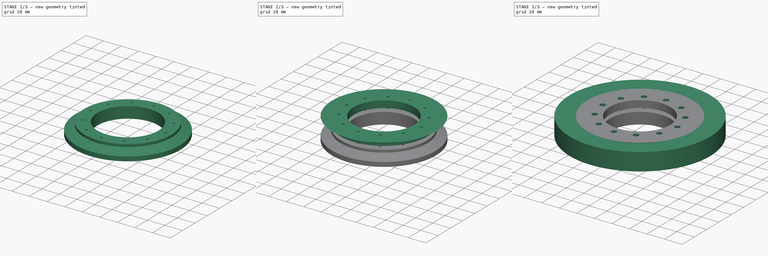
[diagram: build sequence overview — one tinted view per stage of 3, left to right]
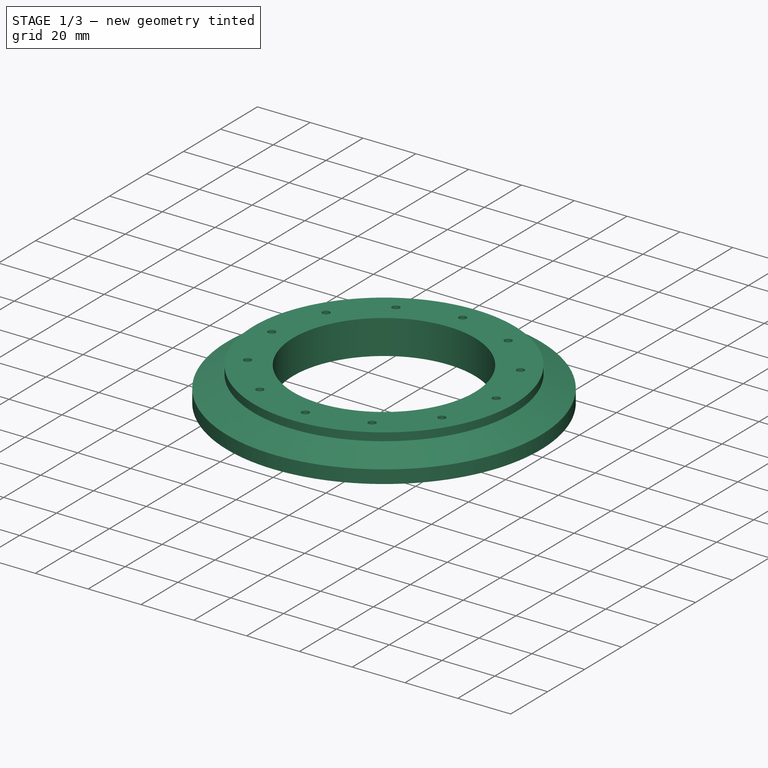
[diagram: stage 1 of 3 — iso view after this stage's code; geometry added in this stage tinted green]
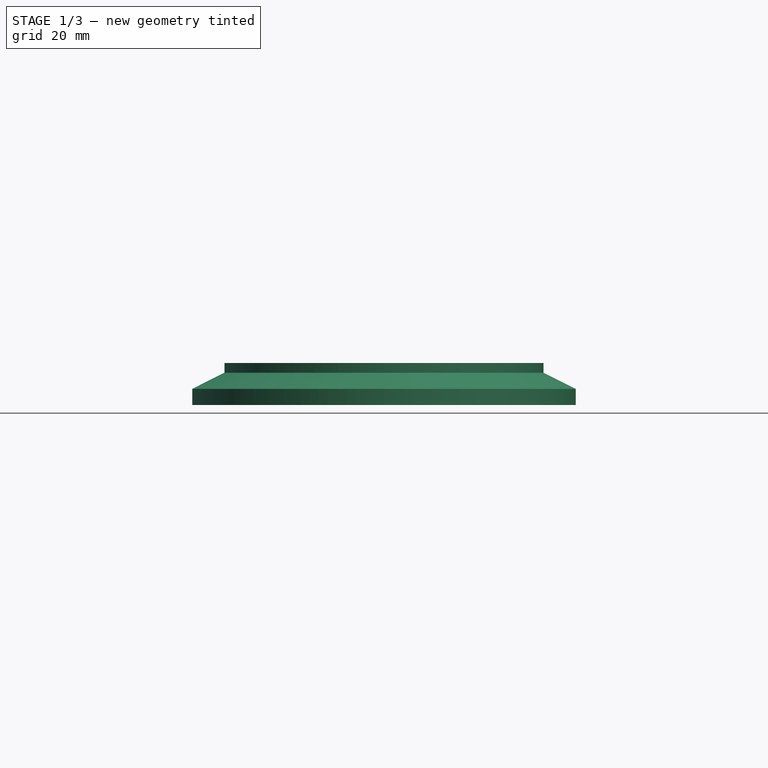
[diagram: stage 1 of 3 — front view after this stage's code; geometry added in this stage tinted green]
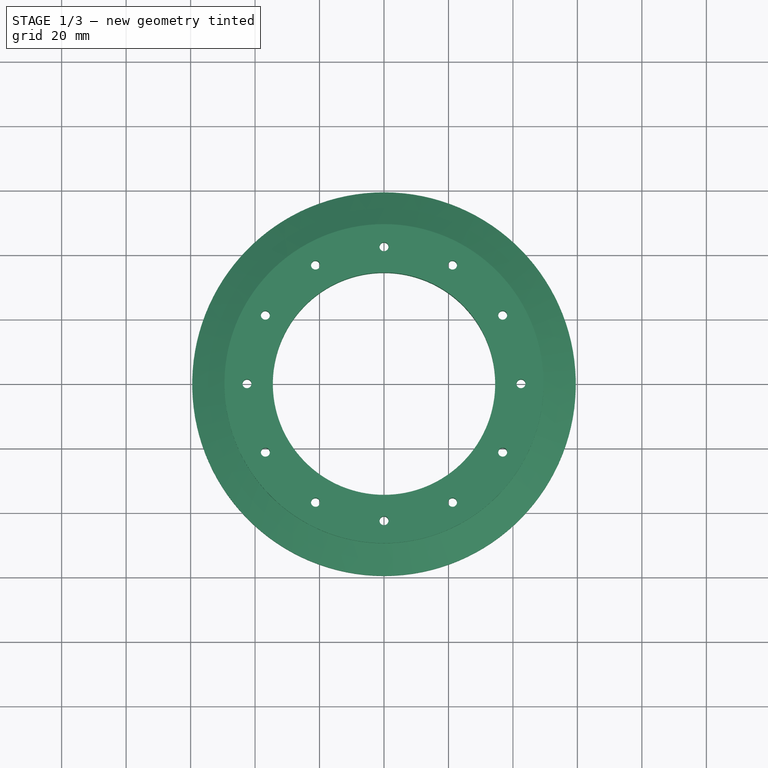
[diagram: stage 1 of 3 — top view after this stage's code; geometry added in this stage tinted green]
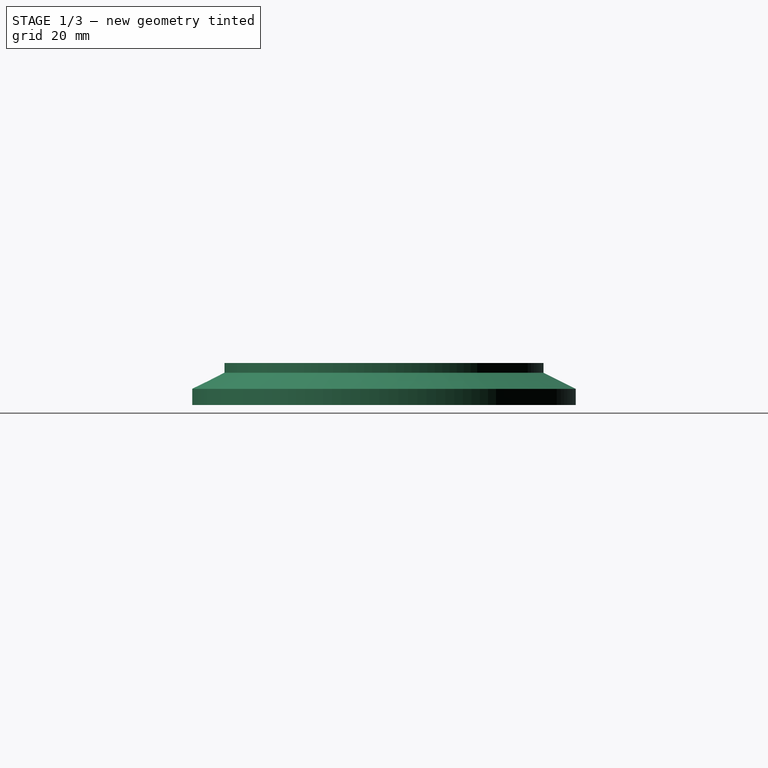
[diagram: stage 1 of 3 — right view after this stage's code; geometry added in this stage tinted green]
FCSTD DOCUMENT  (FreeCAD 1.0R39319 (Git))
Label: SlewingRingRev1
License: All rights reserved
LicenseURL: https://en.wikipedia.org/wiki/All_rights_reserved
objects: Sketcher::SketchObject×6, PartDesign::Revolution×3, PartDesign::Body×3, PartDesign::Pocket×3
note: 33 computed .brp shape members not serialized (recipe doc carries the construction recipe); baked Part::Feature solids carry a one-line shape summary decoded from their .brp

FEATURE [PartDesign::Body] Body001  label="InnerUpper"
  AllowCompound = false
  Group = -> [Sketch001,Revolution001,Sketch002,Pocket,Sketch003,Pocket001]
  Origin = -> Origin001
  Tip = -> Pocket001
FEATURE [Sketcher::SketchObject] Sketch004
  ArcFitTolerance = 1e-06
  AttachmentSupport = -> [YZ_Plane002]
  FullyConstrained = true
  MakeInternals = false
  MapMode = 5
  Placement = pos=(0,0,0) rot=(0.57735,0.57735,0.57735;2.0944rad)
  sketch-geometry (12):
    g0: LineSegment [constr] StartX=0 StartY=0 StartZ=0 EndX=49.5 EndY=0 EndZ=0
    g1: LineSegment [constr] StartX=49.5 StartY=0 StartZ=0 EndX=49.5 EndY=-2 EndZ=0
    g2: LineSegment StartX=49.5 StartY=-2 StartZ=0 EndX=49.5 EndY=-5 EndZ=0
    g3: LineSegment [constr] StartX=49.5 StartY=-5 StartZ=0 EndX=49.5 EndY=-10 EndZ=0
    g4: LineSegment [constr] StartX=49.5 StartY=-10 StartZ=0 EndX=59.5 EndY=-10 EndZ=0
    g5: LineSegment [constr] StartX=59.5 StartY=-10 StartZ=0 EndX=59.5 EndY=-5 EndZ=0
    g6: LineSegment [constr] StartX=59.5 StartY=-5 StartZ=0 EndX=49.5 EndY=-5 EndZ=0
    g7: LineSegment StartX=49.5 StartY=-5 StartZ=0 EndX=59.5 EndY=-10 EndZ=0
    g8: LineSegment StartX=59.5 StartY=-10 StartZ=0 EndX=59.5 EndY=-15 EndZ=0
    g9: LineSegment StartX=59.5 StartY=-15 StartZ=0 EndX=34.5 EndY=-15 EndZ=0
    g10: LineSegment StartX=34.5 StartY=-15 StartZ=0 EndX=34.5 EndY=-2 EndZ=0
    g11: LineSegment StartX=34.5 StartY=-2 StartZ=0 EndX=49.5 EndY=-2 EndZ=0
  constraints (33):
    c: Distance(g0) = 49.5
    c: Coincident(g0,g-1)
    c: PointOnObject(g0,g-1)
    c: Distance(g1) = 2
    c: Coincident(g1,g0)
    c: Vertical(g1)
    c: Distance(g2) = 3
    c: Coincident(g2,g1)
    c: Vertical(g2)
    c: Coincident(g3,g4)
    c: Coincident(g4,g5)
    c: Coincident(g5,g6)
    c: Coincident(g6,g3)
    c: Vertical(g3)
    c: Vertical(g5)
    c: Horizontal(g4)
    c: Horizontal(g6)
    c: Distance(g3,g5) = 10
    c: Distance(g4,g6) = 5
    c: Coincident(g3,g2)
    c: Coincident(g7,g2)
    c: Coincident(g7,g4)
    c: Distance(g8) = 5
    c: Coincident(g8,g4)
    c: Vertical(g8)
    c: Distance(g9) = 25
    c: Coincident(g9,g8)
    c: Horizontal(g9)
    c: Vertical(g10)
    c: Coincident(g10,g9)
    c: Coincident(g11,g1)
    c: Coincident(g11,g10)
    c: Perpendicular(g11,g10)
FEATURE [PartDesign::Revolution] Revolution002
  Angle = 360
  Angle2 = 60
  Axis = (0,0,1)
  Base = (0,0,0)
  Placement = pos=(0,0,0) rot=(1,1,1;2.0944rad)
  Profile = -> Sketch004
  ReferenceAxis = -> Sketch004 [V_Axis]
  Refine = true
  Suppressed = false
  Type = 0
FEATURE [Sketcher::SketchObject] Sketch005
  ArcFitTolerance = 1e-06
  AttachmentSupport = -> [Revolution002]
  FullyConstrained = true
  MakeInternals = false
  MapMode = 5
  Placement = pos=(3.3e-15,0,-15) rot=(0.707107,0.707107,0;3.14159rad)
  sketch-geometry (26):
    g0: Circle [constr] CenterX=0 CenterY=0 CenterZ=0 NormalX=0 NormalY=0 NormalZ=1 AngleXU=0 Radius=42.5
    g1: LineSegment [constr] StartX=-21.25 StartY=36.8061 StartZ=0 EndX=0 EndY=42.5 EndZ=0
    g2: LineSegment [constr] StartX=0 StartY=42.5 StartZ=0 EndX=21.25 EndY=36.8061 EndZ=0
    g3: LineSegment [constr] StartX=21.25 StartY=36.8061 StartZ=0 EndX=36.8061 EndY=21.25 EndZ=0
    g4: LineSegment [constr] StartX=36.8061 StartY=21.25 StartZ=0 EndX=42.5 EndY=0 EndZ=0
    g5: LineSegment [constr] StartX=42.5 StartY=0 StartZ=0 EndX=36.8061 EndY=-21.25 EndZ=0
    g6: LineSegment [constr] StartX=36.8061 StartY=-21.25 StartZ=0 EndX=21.25 EndY=-36.8061 EndZ=0
    g7: LineSegment [constr] StartX=21.25 StartY=-36.8061 StartZ=0 EndX=0 EndY=-42.5 EndZ=0
    g8: LineSegment [constr] StartX=0 StartY=-42.5 StartZ=0 EndX=-21.25 EndY=-36.8061 EndZ=0
    g9: LineSegment [constr] StartX=-21.25 StartY=-36.8061 StartZ=0 EndX=-36.8061 EndY=-21.25 EndZ=0
    g10: LineSegment [constr] StartX=-36.8061 StartY=-21.25 StartZ=0 EndX=-42.5 EndY=0 EndZ=0
    g11: LineSegment [constr] StartX=-42.5 StartY=0 StartZ=0 EndX=-36.8061 EndY=21.25 EndZ=0
    g12: LineSegment [constr] StartX=-36.8061 StartY=21.25 StartZ=0 EndX=-21.25 EndY=36.8061 EndZ=0
    g13: GeomPoint [constr] X=0 Y=42.5 Z=0
    g14: Circle CenterX=21.25 CenterY=36.8061 CenterZ=0 NormalX=0 NormalY=0 NormalZ=1 AngleXU=0 Radius=1.4
    g15: Circle CenterX=0 CenterY=42.5 CenterZ=0 NormalX=0 NormalY=0 NormalZ=1 AngleXU=0 Radius=1.4
    g16: Circle CenterX=-21.25 CenterY=36.8061 CenterZ=0 NormalX=0 NormalY=0 NormalZ=1 AngleXU=0 Radius=1.4
    g17: Circle CenterX=-36.8061 CenterY=21.25 CenterZ=0 NormalX=0 NormalY=0 NormalZ=1 AngleXU=0 Radius=1.4
    g18: Circle CenterX=-42.5 CenterY=0 CenterZ=0 NormalX=0 NormalY=0 NormalZ=1 AngleXU=0 Radius=1.4
    g19: Circle CenterX=-36.8061 CenterY=-21.25 CenterZ=0 NormalX=0 NormalY=0 NormalZ=1 AngleXU=0 Radius=1.4
    g20: Circle CenterX=-21.25 CenterY=-36.8061 CenterZ=0 NormalX=0 NormalY=0 NormalZ=1 AngleXU=0 Radius=1.4
    g21: Circle CenterX=0 CenterY=-42.5 CenterZ=0 NormalX=0 NormalY=0 NormalZ=1 AngleXU=0 Radius=1.4
    g22: Circle CenterX=21.25 CenterY=-36.8061 CenterZ=0 NormalX=0 NormalY=0 NormalZ=1 AngleXU=0 Radius=1.4
    g23: Circle CenterX=36.8061 CenterY=-21.25 CenterZ=0 NormalX=0 NormalY=0 NormalZ=1 AngleXU=0 Radius=1.4
    g24: Circle CenterX=42.5 CenterY=0 CenterZ=0 NormalX=0 NormalY=0 NormalZ=1 AngleXU=0 Radius=1.4
    g25: Circle CenterX=36.8061 CenterY=21.25 CenterZ=0 NormalX=0 NormalY=0 NormalZ=1 AngleXU=0 Radius=1.4
  constraints (63):
    c: Diameter(g0) = 85
    c: Coincident(g0,g-1)
    c: PointOnObject(g1,g0)
    c: PointOnObject(g1,g0)
    c: Coincident(g1,g2)
    c: PointOnObject(g2,g0)
    c: Coincident(g2,g3)
    c: PointOnObject(g3,g0)
    c: Coincident(g3,g4)
    c: PointOnObject(g4,g0)
    c: Coincident(g4,g5)
    c: PointOnObject(g5,g0)
    c: Coincident(g5,g6)
    c: PointOnObject(g6,g0)
    c: Coincident(g6,g7)
    c: PointOnObject(g7,g0)
    c: Coincident(g7,g8)
    c: PointOnObject(g8,g0)
    c: Coincident(g8,g9)
    c: PointOnObject(g9,g0)
    c: Coincident(g9,g10)
    c: PointOnObject(g10,g0)
    c: Coincident(g10,g11)
    c: PointOnObject(g11,g0)
    c: Coincident(g11,g12)
    c: Coincident(g12,g1)
    c: Equal(g1,g2)
    c: Equal(g2,g3)
    c: Equal(g3,g4)
    c: Equal(g5,g6)
    c: Equal(g6,g7)
    c: Equal(g7,g8)
    c: Equal(g8,g9)
    c: Equal(g9,g10)
    c: Equal(g10,g11)
    c: Equal(g11,g12)
    c: Coincident(g13,g1)
    c: PointOnObject(g1,g-2)
    c: Equal(g1,g12)
    c: Coincident(g14,g2)
    c: Coincident(g15,g1)
    c: Coincident(g16,g1)
    c: Coincident(g17,g11)
    c: Coincident(g18,g10)
    c: Coincident(g19,g9)
    c: Diameter(g20) = 2.8
    c: Coincident(g20,g8)
    c: Coincident(g21,g7)
    c: Coincident(g22,g6)
    c: Coincident(g23,g5)
    c: Coincident(g24,g4)
    c: Coincident(g25,g3)
    c: Equal(g20,g19)
    c: Equal(g19,g18)
    c: Equal(g18,g17)
    c: Equal(g17,g16)
    c: Equal(g16,g15)
    c: Equal(g15,g14)
    c: Equal(g14,g25)
    c: Equal(g25,g24)
    c: Equal(g24,g23)
    c: Equal(g23,g22)
    c: Equal(g22,g21)
FEATURE [PartDesign::Pocket] Pocket002
  BaseFeature = -> Revolution002
  Direction = (0,0,1)
  Length = 5
  Length2 = 5
  Placement = pos=(0,0,0) rot=(1,1,1;2.0944rad)
  Profile = -> Sketch005
  ReferenceAxis = -> Sketch005 [N_Axis]
  Refine = true
  Suppressed = false
  Type = 1
FEATURE [PartDesign::Body] Body002  label="InnerLower"
  AllowCompound = false
  Group = -> [Sketch004,Revolution002,Sketch005,Pocket002]
  Origin = -> Origin002
  Tip = -> Pocket002
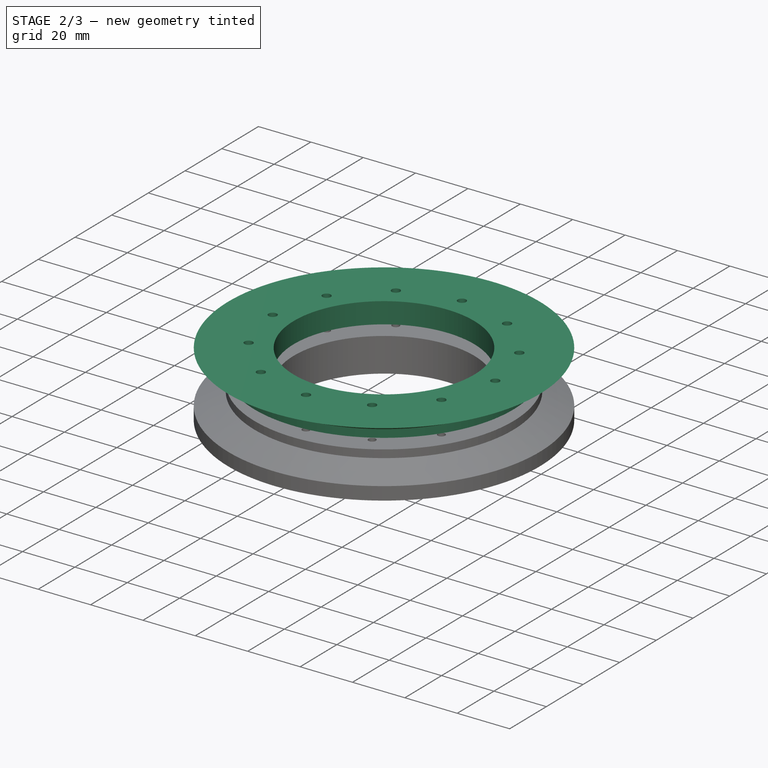
[diagram: stage 2 of 3 — iso view after this stage's code; geometry added in this stage tinted green]
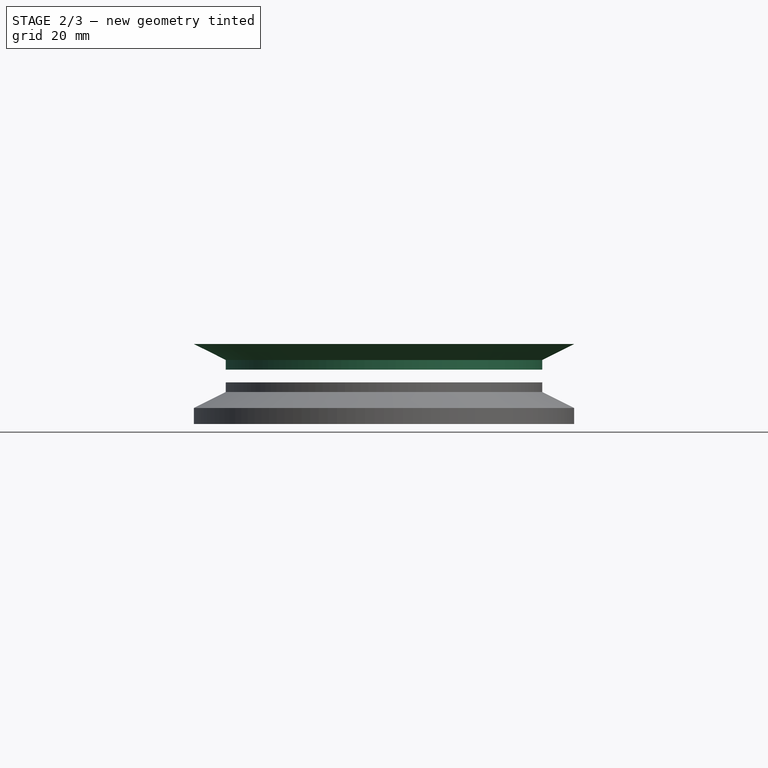
[diagram: stage 2 of 3 — front view after this stage's code; geometry added in this stage tinted green]
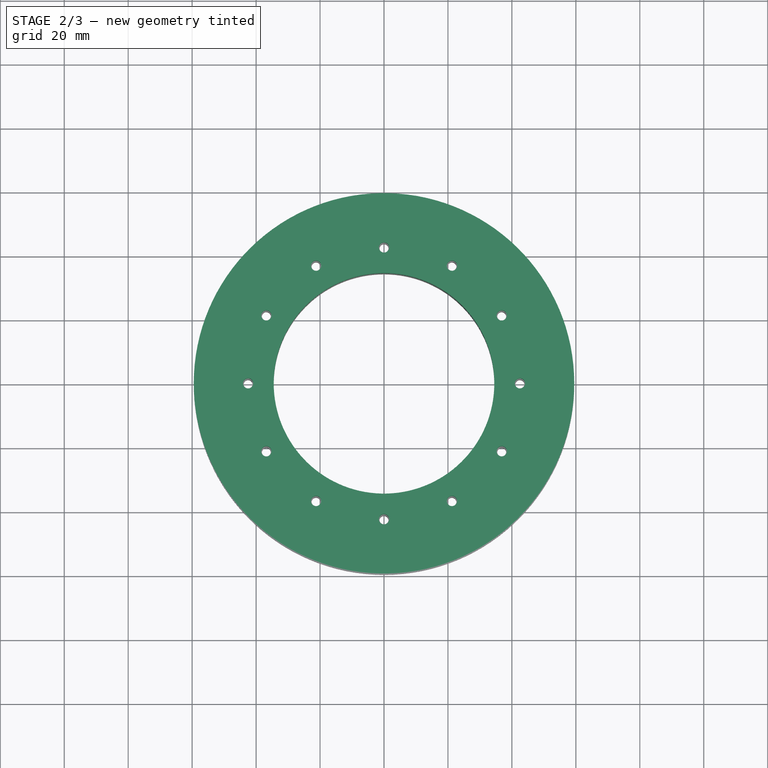
[diagram: stage 2 of 3 — top view after this stage's code; geometry added in this stage tinted green]
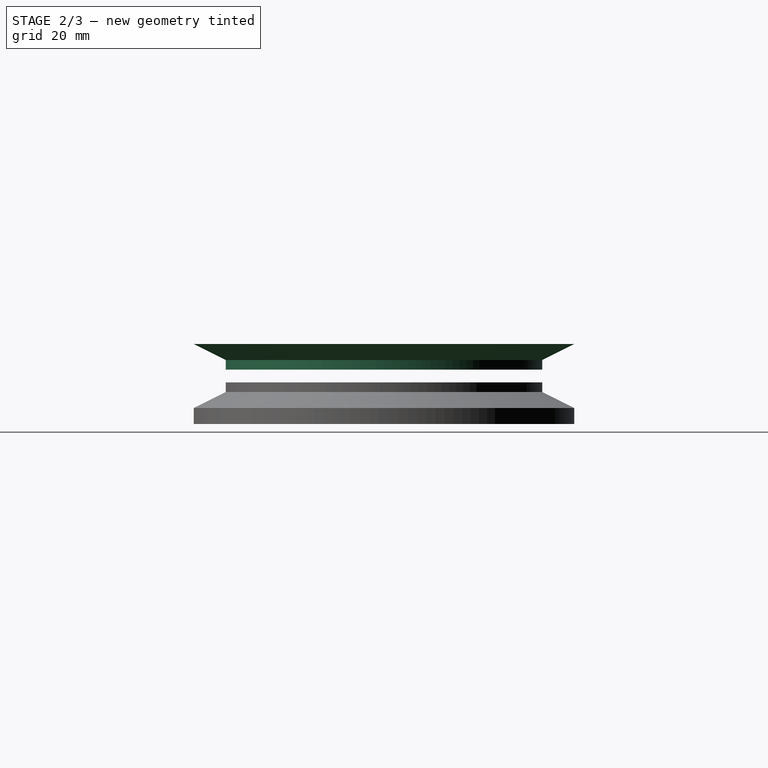
[diagram: stage 2 of 3 — right view after this stage's code; geometry added in this stage tinted green]
FEATURE [PartDesign::Body] Body
  AllowCompound = false
  Group = -> [Sketch,Revolution]
  Origin = -> Origin
  Tip = -> Revolution
FEATURE [Sketcher::SketchObject] Sketch001
  ArcFitTolerance = 1e-06
  AttachmentSupport = -> [XZ_Plane001]
  FullyConstrained = true
  MakeInternals = false
  MapMode = 5
  Placement = pos=(0,0,0) rot=(1,0,0;1.5708rad)
  sketch-geometry (12):
    g0: LineSegment [constr] StartX=0 StartY=0 StartZ=0 EndX=49.5 EndY=0 EndZ=0
    g1: LineSegment [constr] StartX=49.5 StartY=0 StartZ=0 EndX=49.5 EndY=2 EndZ=0
    g2: LineSegment [constr] StartX=49.5 StartY=0 StartZ=0 EndX=49.5 EndY=-2 EndZ=0
    g3: LineSegment StartX=49.5 StartY=2 StartZ=0 EndX=49.5 EndY=5 EndZ=0
    g4: LineSegment [constr] StartX=49.5 StartY=5 StartZ=0 EndX=59.5 EndY=5 EndZ=0
    g5: LineSegment [constr] StartX=59.5 StartY=5 StartZ=0 EndX=59.5 EndY=10 EndZ=0
    g6: LineSegment [constr] StartX=59.5 StartY=10 StartZ=0 EndX=49.5 EndY=10 EndZ=0
    g7: LineSegment [constr] StartX=49.5 StartY=10 StartZ=0 EndX=49.5 EndY=5 EndZ=0
    g8: LineSegment StartX=49.5 StartY=5 StartZ=0 EndX=59.5 EndY=10 EndZ=0
    g9: LineSegment StartX=59.5 StartY=10 StartZ=0 EndX=34.5 EndY=10 EndZ=0
    g10: LineSegment StartX=34.5 StartY=10 StartZ=0 EndX=34.5 EndY=2 EndZ=0
    g11: LineSegment StartX=34.5 StartY=2 StartZ=0 EndX=49.5 EndY=2 EndZ=0
  constraints (33):
    c: Distance(g0) = 49.5
    c: Coincident(g0,g-1)
    c: PointOnObject(g0,g-1)
    c: Distance(g1) = 2
    c: Coincident(g1,g0)
    c: Vertical(g1)
    c: Distance(g2) = 2
    c: Coincident(g2,g0)
    c: Vertical(g2)
    c: Distance(g3) = 3
    c: Coincident(g3,g1)
    c: Vertical(g3)
    c: Coincident(g4,g5)
    c: Coincident(g5,g6)
    c: Coincident(g6,g7)
    c: Coincident(g7,g4)
    c: Horizontal(g4)
    c: Horizontal(g6)
    c: Vertical(g5)
    c: Vertical(g7)
    c: Distance(g5,g7) = 10
    c: Distance(g4,g6) = 5
    c: Coincident(g4,g3)
    c: Coincident(g8,g3)
    c: Coincident(g8,g5)
    c: Distance(g9) = 25
    c: Coincident(g9,g5)
    c: Horizontal(g9)
    c: Distance(g10) = 8
    c: Coincident(g10,g9)
    c: Vertical(g10)
    c: Coincident(g11,g10)
    c: Coincident(g11,g1)
FEATURE [PartDesign::Revolution] Revolution001
  Angle = 360
  Angle2 = 60
  Axis = (0,2e-16,1)
  Base = (0,0,0)
  Placement = pos=(0,0,0) rot=(1,0,0;1.5708rad)
  Profile = -> Sketch001
  ReferenceAxis = -> Sketch001 [V_Axis]
  Refine = true
  Reversed = true
  Suppressed = false
  Type = 0
FEATURE [Sketcher::SketchObject] Sketch002
  ArcFitTolerance = 1e-06
  AttachmentSupport = -> [Revolution001]
  FullyConstrained = true
  MakeInternals = false
  MapMode = 5
  Placement = pos=(0,4.4e-15,10) rot=(0,0,1;3.14159rad)
  sketch-geometry (26):
    g0: Circle [constr] CenterX=0 CenterY=0 CenterZ=0 NormalX=0 NormalY=0 NormalZ=1 AngleXU=0 Radius=42.5
    g1: GeomPoint X=0 Y=42.5 Z=0
    g2: LineSegment [constr] StartX=0 StartY=42.5 StartZ=0 EndX=21.25 EndY=36.8061 EndZ=0
    g3: LineSegment [constr] StartX=21.25 StartY=36.8061 StartZ=0 EndX=36.8061 EndY=21.25 EndZ=0
    g4: LineSegment [constr] StartX=36.8061 StartY=21.25 StartZ=0 EndX=42.5 EndY=0 EndZ=0
    g5: LineSegment [constr] StartX=42.5 StartY=0 StartZ=0 EndX=36.8061 EndY=-21.25 EndZ=0
    g6: LineSegment [constr] StartX=36.8061 StartY=-21.25 StartZ=0 EndX=21.25 EndY=-36.8061 EndZ=0
    g7: LineSegment [constr] StartX=21.25 StartY=-36.8061 StartZ=0 EndX=0 EndY=-42.5 EndZ=0
    g8: LineSegment [constr] StartX=0 StartY=-42.5 StartZ=0 EndX=-21.25 EndY=-36.8061 EndZ=0
    g9: LineSegment [constr] StartX=-21.25 StartY=-36.8061 StartZ=0 EndX=-36.8061 EndY=-21.25 EndZ=0
    g10: LineSegment [constr] StartX=-36.8061 StartY=-21.25 StartZ=0 EndX=-42.5 EndY=0 EndZ=0
    g11: LineSegment [constr] StartX=-42.5 StartY=0 StartZ=0 EndX=-36.8061 EndY=21.25 EndZ=0
    g12: LineSegment [constr] StartX=-36.8061 StartY=21.25 StartZ=0 EndX=-21.25 EndY=36.8061 EndZ=0
    g13: LineSegment [constr] StartX=-21.25 StartY=36.8061 StartZ=0 EndX=0 EndY=42.5 EndZ=0
    g14: Circle CenterX=0 CenterY=42.5 CenterZ=0 NormalX=0 NormalY=0 NormalZ=1 AngleXU=0 Radius=1.6
    g15: Circle CenterX=21.25 CenterY=36.8061 CenterZ=0 NormalX=0 NormalY=0 NormalZ=1 AngleXU=0 Radius=1.6
    g16: Circle CenterX=36.8061 CenterY=21.25 CenterZ=0 NormalX=0 NormalY=0 NormalZ=1 AngleXU=0 Radius=1.6
    g17: Circle CenterX=42.5 CenterY=0 CenterZ=0 NormalX=0 NormalY=0 NormalZ=1 AngleXU=0 Radius=1.6
    g18: Circle CenterX=36.8061 CenterY=-21.25 CenterZ=0 NormalX=0 NormalY=0 NormalZ=1 AngleXU=0 Radius=1.6
    g19: Circle CenterX=21.25 CenterY=-36.8061 CenterZ=0 NormalX=0 NormalY=0 NormalZ=1 AngleXU=0 Radius=1.6
    g20: Circle CenterX=0 CenterY=-42.5 CenterZ=0 NormalX=0 NormalY=0 NormalZ=1 AngleXU=0 Radius=1.6
    g21: Circle CenterX=-21.25 CenterY=-36.8061 CenterZ=0 NormalX=0 NormalY=0 NormalZ=1 AngleXU=0 Radius=1.6
    g22: Circle CenterX=-36.8061 CenterY=-21.25 CenterZ=0 NormalX=0 NormalY=0 NormalZ=1 AngleXU=0 Radius=1.6
    g23: Circle CenterX=-42.5 CenterY=0 CenterZ=0 NormalX=0 NormalY=0 NormalZ=1 AngleXU=0 Radius=1.6
    g24: Circle CenterX=-36.8061 CenterY=21.25 CenterZ=0 NormalX=0 NormalY=0 NormalZ=1 AngleXU=0 Radius=1.6
    g25: Circle CenterX=-21.25 CenterY=36.8061 CenterZ=0 NormalX=0 NormalY=0 NormalZ=1 AngleXU=0 Radius=1.6
  constraints (64):
    c: Diameter(g0) = 85
    c: Coincident(g0,g-1)
    c: PointOnObject(g1,g0)
    c: PointOnObject(g1,g-2)
    c: PointOnObject(g2,g0)
    c: PointOnObject(g2,g0)
    c: Coincident(g2,g3)
    c: PointOnObject(g3,g0)
    c: Coincident(g3,g4)
    c: PointOnObject(g4,g0)
    c: Coincident(g4,g5)
    c: PointOnObject(g5,g0)
    c: Coincident(g5,g6)
    c: PointOnObject(g6,g0)
    c: Coincident(g6,g7)
    c: PointOnObject(g7,g0)
    c: Coincident(g7,g8)
    c: PointOnObject(g8,g0)
    c: Coincident(g8,g9)
    c: PointOnObject(g9,g0)
    c: Coincident(g9,g10)
    c: PointOnObject(g10,g0)
    c: Coincident(g10,g11)
    c: PointOnObject(g11,g0)
    c: Coincident(g11,g12)
    c: PointOnObject(g12,g0)
    c: Coincident(g12,g13)
    c: Coincident(g13,g2)
    c: Equal(g2,g3)
    c: Equal(g2,g4)
    c: Equal(g2,g5)
    c: Equal(g6,g5)
    c: Equal(g6,g7)
    c: Equal(g7,g8)
    c: Equal(g8,g9)
    c: Equal(g9,g10)
    c: Equal(g10,g11)
    c: Equal(g11,g12)
    c: Equal(g12,g13)
    c: PointOnObject(g2,g-2)
    c: Diameter(g14) = 3.2
    c: Coincident(g14,g1)
    c: Coincident(g15,g2)
    c: Coincident(g16,g3)
    c: Coincident(g17,g4)
    c: Coincident(g18,g5)
    c: Coincident(g19,g6)
    c: Coincident(g20,g7)
    c: Coincident(g21,g8)
    c: Coincident(g22,g9)
    c: Coincident(g23,g10)
    c: Coincident(g24,g11)
    c: Coincident(g25,g12)
    c: Equal(g25,g14)
    c: Equal(g25,g24)
    c: Equal(g24,g23)
    c: Equal(g23,g22)
    c: Equal(g22,g21)
    c: Equal(g21,g20)
    c: Equal(g20,g19)
    c: Equal(g19,g18)
    c: Equal(g18,g17)
    c: Equal(g17,g16)
    c: Equal(g16,g15)
FEATURE [PartDesign::Pocket] Pocket
  BaseFeature = -> Revolution001
  Direction = (0,0,-1)
  Length = 5
  Length2 = 5
  Placement = pos=(0,0,0) rot=(1,0,0;1.5708rad)
  Profile = -> Sketch002
  ReferenceAxis = -> Sketch002 [N_Axis]
  Refine = true
  Suppressed = false
  Type = 1
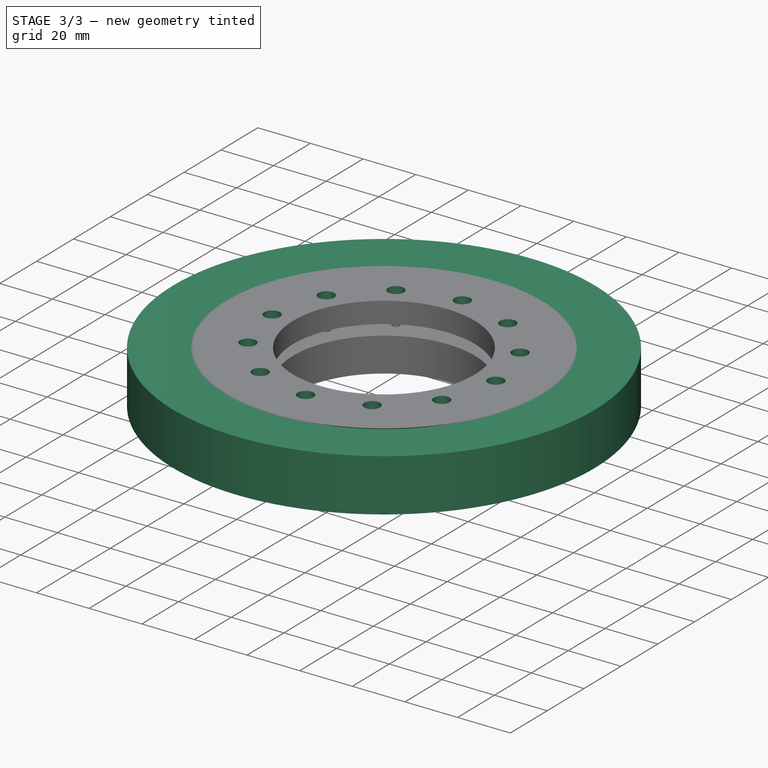
[diagram: stage 3 of 3 — iso view after this stage's code; geometry added in this stage tinted green]
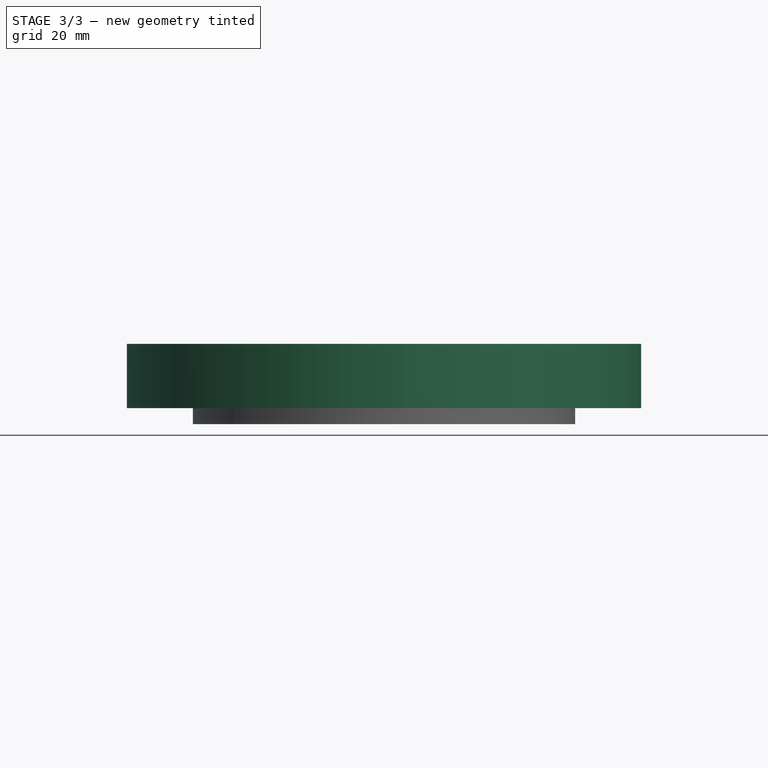
[diagram: stage 3 of 3 — front view after this stage's code; geometry added in this stage tinted green]
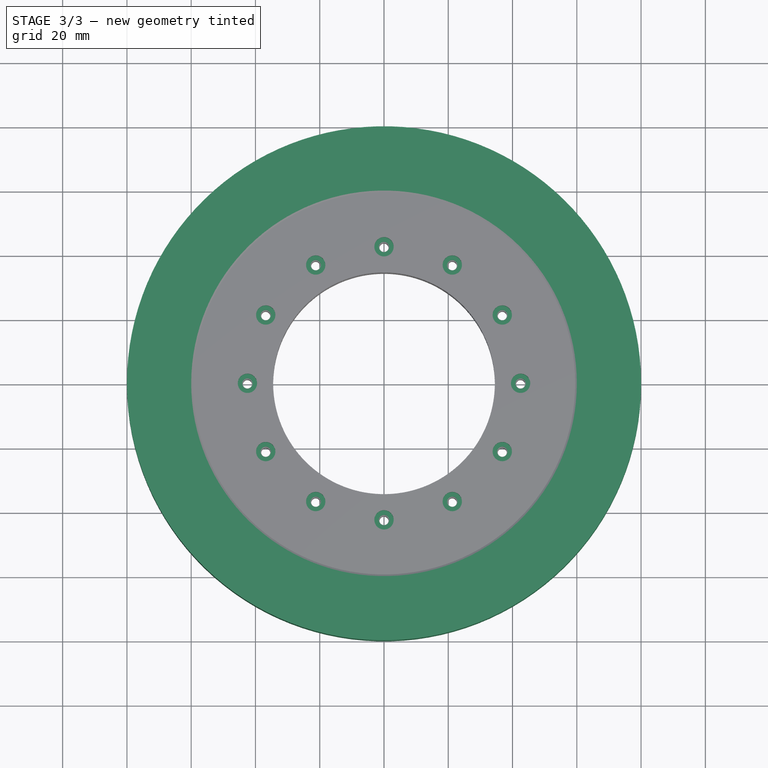
[diagram: stage 3 of 3 — top view after this stage's code; geometry added in this stage tinted green]
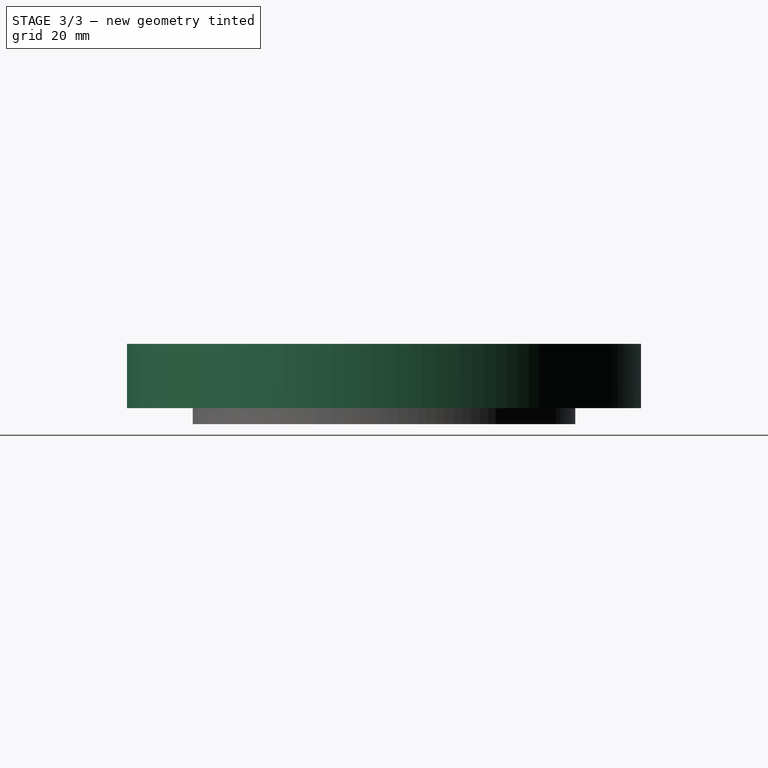
[diagram: stage 3 of 3 — right view after this stage's code; geometry added in this stage tinted green]
FEATURE [Sketcher::SketchObject] Sketch
  ArcFitTolerance = 1e-06
  AttachmentSupport = -> [XZ_Plane]
  FullyConstrained = true
  MakeInternals = false
  MapMode = 5
  Placement = pos=(0,0,0) rot=(1,0,0;1.5708rad)
  sketch-geometry (16):
    g0: LineSegment [constr] StartX=0 StartY=0 StartZ=0 EndX=50 EndY=0 EndZ=0
    g1: LineSegment StartX=50 StartY=0 StartZ=0 EndX=50 EndY=5 EndZ=0
    g2: LineSegment StartX=50 StartY=0 StartZ=0 EndX=50 EndY=-5 EndZ=0
    g3: LineSegment [constr] StartX=50 StartY=5 StartZ=0 EndX=60 EndY=5 EndZ=0
    g4: LineSegment [constr] StartX=60 StartY=5 StartZ=0 EndX=60 EndY=10 EndZ=0
    g5: LineSegment [constr] StartX=60 StartY=10 StartZ=0 EndX=50 EndY=10 EndZ=0
    g6: LineSegment [constr] StartX=50 StartY=10 StartZ=0 EndX=50 EndY=5 EndZ=0
    g7: LineSegment [constr] StartX=50 StartY=-5 StartZ=0 EndX=50 EndY=-10 EndZ=0
    g8: LineSegment [constr] StartX=50 StartY=-10 StartZ=0 EndX=60 EndY=-10 EndZ=0
    g9: LineSegment [constr] StartX=60 StartY=-10 StartZ=0 EndX=60 EndY=-5 EndZ=0
    g10: LineSegment [constr] StartX=60 StartY=-5 StartZ=0 EndX=50 EndY=-5 EndZ=0
    g11: LineSegment StartX=50 StartY=5 StartZ=0 EndX=60 EndY=10 EndZ=0
    g12: LineSegment StartX=50 StartY=-5 StartZ=0 EndX=60 EndY=-10 EndZ=0
    g13: LineSegment StartX=60 StartY=-10 StartZ=0 EndX=80 EndY=-10 EndZ=0
    g14: LineSegment StartX=60 StartY=10 StartZ=0 EndX=80 EndY=10 EndZ=0
    g15: LineSegment StartX=80 StartY=10 StartZ=0 EndX=80 EndY=-10 EndZ=0
  constraints (43):
    c: Distance(g0) = 50
    c: Coincident(g0,g-1)
    c: PointOnObject(g0,g-1)
    c: Distance(g1) = 5
    c: Coincident(g1,g0)
    c: Vertical(g1)
    c: Distance(g2) = 5
    c: Coincident(g2,g0)
    c: Vertical(g2)
    c: Coincident(g3,g4)
    c: Coincident(g4,g5)
    c: Coincident(g5,g6)
    c: Coincident(g6,g3)
    c: Horizontal(g3)
    c: Horizontal(g5)
    c: Vertical(g4)
    c: Vertical(g6)
    c: Distance(g4,g6) = 10
    c: Distance(g3,g5) = 5
    c: Coincident(g3,g1)
    c: Coincident(g7,g8)
    c: Coincident(g8,g9)
    c: Coincident(g9,g10)
    c: Coincident(g10,g7)
    c: Vertical(g7)
    c: Vertical(g9)
    c: Horizontal(g8)
    c: Horizontal(g10)
    c: Distance(g7,g9) = 10
    c: Distance(g8,g10) = 5
    c: Coincident(g7,g2)
    c: Coincident(g11,g1)
    c: Coincident(g11,g4)
    c: Coincident(g12,g2)
    c: Coincident(g12,g8)
    c: Coincident(g13,g8)
    c: Horizontal(g13)
    c: Distance(g14) = 20
    c: Coincident(g14,g4)
    c: Horizontal(g14)
    c: Coincident(g15,g14)
    c: Coincident(g15,g13)
    c: Equal(g14,g13)
FEATURE [PartDesign::Revolution] Revolution
  Angle = 360
  Angle2 = 60
  Axis = (0,2e-16,1)
  Base = (0,0,0)
  Placement = pos=(0,0,0) rot=(1,0,0;1.5708rad)
  Profile = -> Sketch
  ReferenceAxis = -> Sketch [V_Axis]
  Refine = true
  Reversed = true
  Suppressed = false
  Type = 0
FEATURE [Sketcher::SketchObject] Sketch003
  ArcFitTolerance = 1e-06
  AttachmentSupport = -> [Pocket]
  ExternalGeometry = -> [Pocket]
  FullyConstrained = true
  MakeInternals = false
  MapMode = 5
  Placement = pos=(0,4.4e-15,10) rot=(0,0,1;3.14159rad)
  sketch-geometry (12):
    g0: Circle CenterX=0 CenterY=42.5 CenterZ=0 NormalX=0 NormalY=0 NormalZ=1 AngleXU=0 Radius=3
    g1: Circle CenterX=21.25 CenterY=36.8061 CenterZ=0 NormalX=0 NormalY=0 NormalZ=1 AngleXU=0 Radius=3
    g2: Circle CenterX=36.8061 CenterY=21.25 CenterZ=0 NormalX=0 NormalY=0 NormalZ=1 AngleXU=0 Radius=3
    g3: Circle CenterX=42.5 CenterY=0 CenterZ=0 NormalX=0 NormalY=0 NormalZ=1 AngleXU=0 Radius=3
    g4: Circle CenterX=36.8061 CenterY=-21.25 CenterZ=0 NormalX=0 NormalY=0 NormalZ=1 AngleXU=0 Radius=3
    g5: Circle CenterX=21.25 CenterY=-36.8061 CenterZ=0 NormalX=0 NormalY=0 NormalZ=1 AngleXU=0 Radius=3
    g6: Circle CenterX=0 CenterY=-42.5 CenterZ=0 NormalX=0 NormalY=0 NormalZ=1 AngleXU=0 Radius=3
    g7: Circle CenterX=-21.25 CenterY=-36.8061 CenterZ=0 NormalX=0 NormalY=0 NormalZ=1 AngleXU=0 Radius=3
    g8: Circle CenterX=-36.8061 CenterY=-21.25 CenterZ=0 NormalX=0 NormalY=0 NormalZ=1 AngleXU=0 Radius=3
    g9: Circle CenterX=-42.5 CenterY=0 CenterZ=0 NormalX=0 NormalY=0 NormalZ=1 AngleXU=0 Radius=3
    g10: Circle CenterX=-36.8061 CenterY=21.25 CenterZ=0 NormalX=0 NormalY=0 NormalZ=1 AngleXU=0 Radius=3
    g11: Circle CenterX=-21.25 CenterY=36.8061 CenterZ=0 NormalX=0 NormalY=0 NormalZ=1 AngleXU=0 Radius=3
  constraints (24):
    c: Coincident(g0,g-3)
    c: Coincident(g1,g-4)
    c: Coincident(g2,g-5)
    c: Diameter(g3) = 6
    c: Coincident(g3,g-6)
    c: Coincident(g4,g-7)
    c: Coincident(g5,g-8)
    c: Coincident(g6,g-9)
    c: Coincident(g7,g-10)
    c: Coincident(g8,g-11)
    c: Coincident(g9,g-12)
    c: Coincident(g10,g-13)
    c: Coincident(g11,g-14)
    c: Equal(g3,g2)
    c: Equal(g2,g1)
    c: Equal(g1,g0)
    c: Equal(g0,g11)
    c: Equal(g11,g10)
    c: Equal(g10,g9)
    c: Equal(g9,g8)
    c: Equal(g8,g7)
    c: Equal(g7,g6)
    c: Equal(g6,g5)
    c: Equal(g5,g4)
FEATURE [PartDesign::Pocket] Pocket001
  BaseFeature = -> Pocket
  Direction = (0,0,-1)
  Length = 4
  Length2 = 5
  Placement = pos=(0,0,0) rot=(1,0,0;1.5708rad)
  Profile = -> Sketch003
  ReferenceAxis = -> Sketch003 [N_Axis]
  Refine = true
  Suppressed = false
  Type = 0
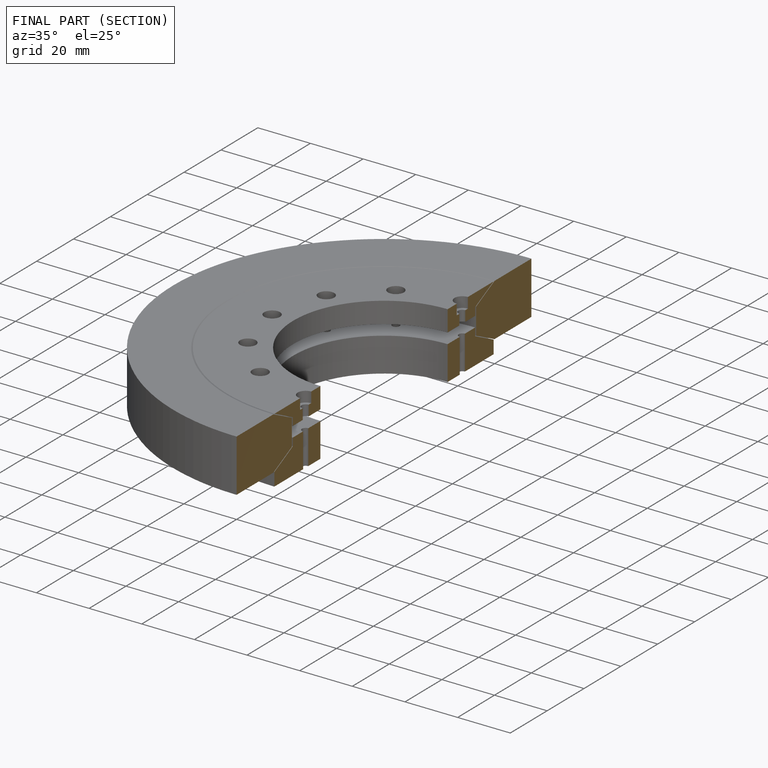
[diagram: finished part — half-section view (interior)]
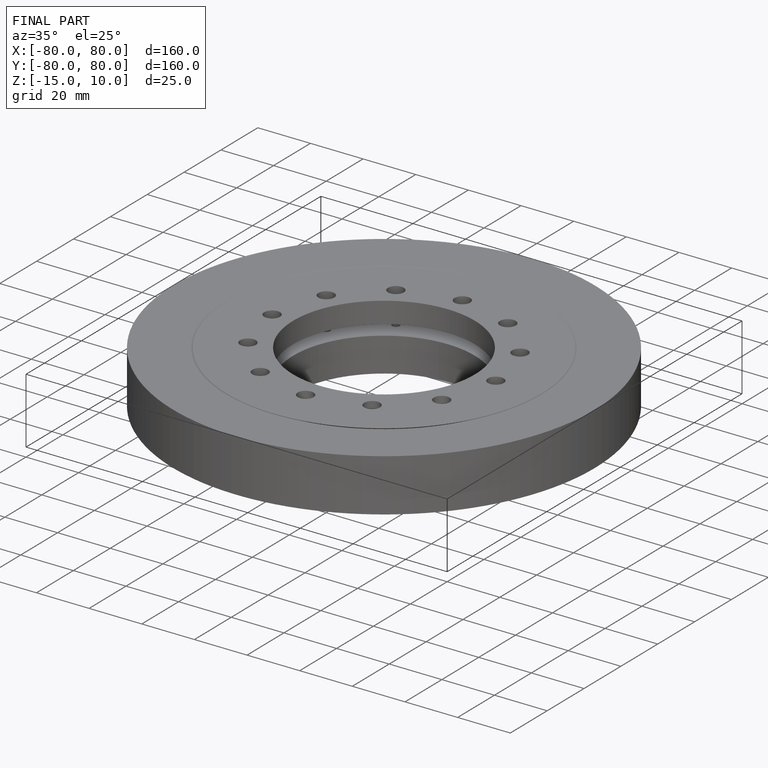
[diagram: finished part — iso view with bounding-box wireframe]
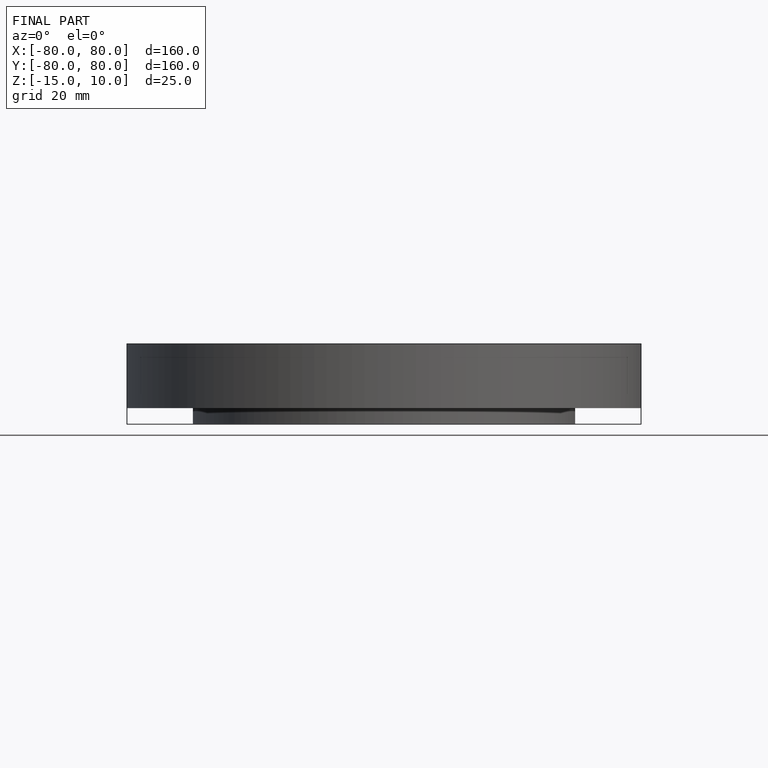
[diagram: finished part — front view with bounding-box wireframe]
